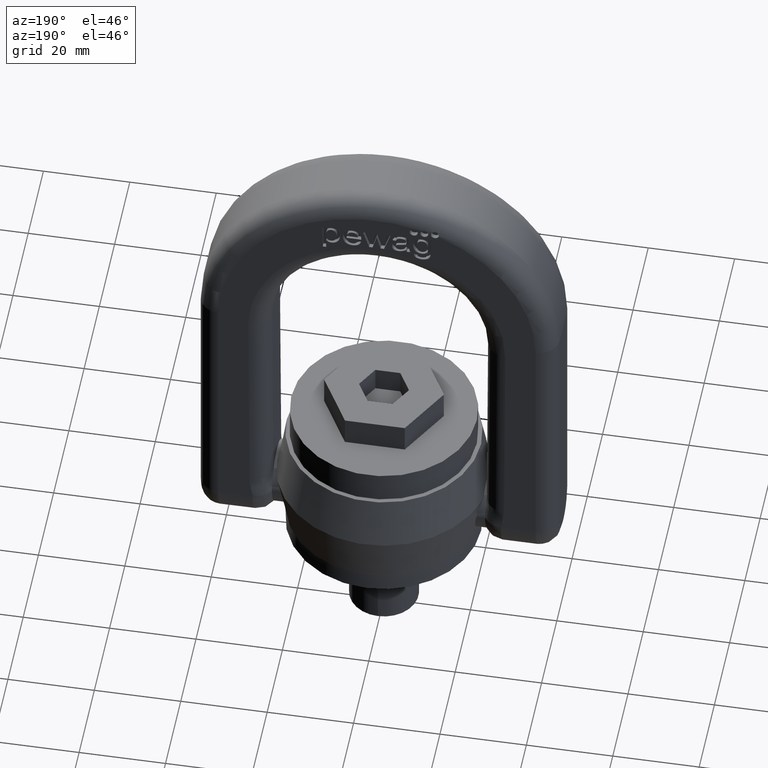
[diagram: clean part render]
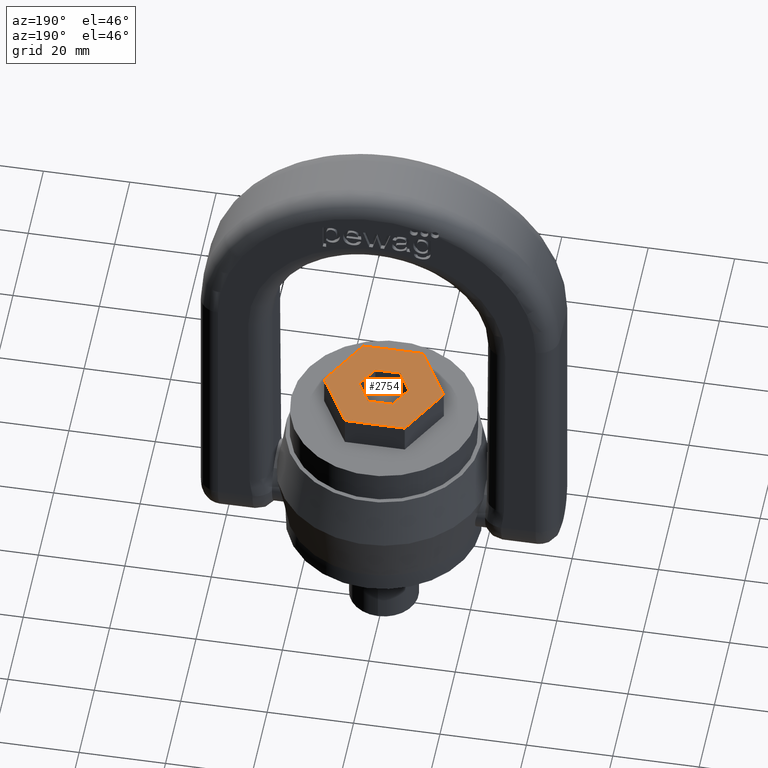
[diagram: same view with one face highlighted and labeled with its STEP entity id]
A machine part, auxiliary view. The second image highlights one B-rep face of the part: STEP entity #2754.
In plain terms, the highlighted planar face has unit normal (0, 0, 1).
Its self-contained STEP definition (entity closure, byte-faithful):
#1762=LINE('',#6634,#2044);
#1765=LINE('',#6640,#2047);
#1767=LINE('',#6644,#2049);
#1769=LINE('',#6648,#2051);
#1771=LINE('',#6652,#2053);
#1772=LINE('',#6654,#2054);
#1773=LINE('',#6656,#2055);
#1774=LINE('',#6659,#2056);
#1775=LINE('',#6661,#2057);
#1776=LINE('',#6663,#2058);
#1777=LINE('',#6665,#2059);
#1778=LINE('',#6667,#2060);
#2044=VECTOR('',#5851,1.);
#2047=VECTOR('',#5856,1.);
#2049=VECTOR('',#5860,1.);
#2051=VECTOR('',#5864,1.);
#2053=VECTOR('',#5868,1.);
#2054=VECTOR('',#5871,1.);
#2055=VECTOR('',#5874,1.);
#2056=VECTOR('',#5875,1.);
#2057=VECTOR('',#5876,1.);
#2058=VECTOR('',#5877,1.);
#2059=VECTOR('',#5878,1.);
#2060=VECTOR('',#5879,1.);
#2635=PLANE('',#5625);
#2754=ADVANCED_FACE('',(#3017,#3018),#2635,.T.);
#3017=FACE_BOUND('',#3086,.T.);
#3018=FACE_BOUND('',#3087,.T.);
#3086=EDGE_LOOP('',(#3385,#3386,#3387,#3388,#3389,#3390));
#3087=EDGE_LOOP('',(#3391,#3392,#3393,#3394,#3395,#3396));
#3385=ORIENTED_EDGE('',*,*,#4969,.F.);
#3386=ORIENTED_EDGE('',*,*,#4970,.F.);
#3387=ORIENTED_EDGE('',*,*,#4971,.F.);
#3388=ORIENTED_EDGE('',*,*,#4972,.F.);
#3389=ORIENTED_EDGE('',*,*,#4973,.F.);
#3390=ORIENTED_EDGE('',*,*,#4974,.F.);
#3391=ORIENTED_EDGE('',*,*,#4958,.T.);
#3392=ORIENTED_EDGE('',*,*,#4961,.T.);
#3393=ORIENTED_EDGE('',*,*,#4963,.T.);
#3394=ORIENTED_EDGE('',*,*,#4965,.T.);
#3395=ORIENTED_EDGE('',*,*,#4967,.T.);
#3396=ORIENTED_EDGE('',*,*,#4968,.T.);
#4557=VERTEX_POINT('',#6633);
#4558=VERTEX_POINT('',#6635);
#4559=VERTEX_POINT('',#6639);
#4560=VERTEX_POINT('',#6643);
#4561=VERTEX_POINT('',#6647);
#4562=VERTEX_POINT('',#6651);
#4563=VERTEX_POINT('',#6657);
#4564=VERTEX_POINT('',#6658);
#4565=VERTEX_POINT('',#6660);
#4566=VERTEX_POINT('',#6662);
#4567=VERTEX_POINT('',#6664);
#4568=VERTEX_POINT('',#6666);
#4958=EDGE_CURVE('',#4558,#4557,#1762,.T.);
#4961=EDGE_CURVE('',#4557,#4559,#1765,.T.);
#4963=EDGE_CURVE('',#4559,#4560,#1767,.T.);
#4965=EDGE_CURVE('',#4560,#4561,#1769,.T.);
#4967=EDGE_CURVE('',#4561,#4562,#1771,.T.);
#4968=EDGE_CURVE('',#4562,#4558,#1772,.T.);
#4969=EDGE_CURVE('',#4563,#4564,#1773,.T.);
#4970=EDGE_CURVE('',#4565,#4563,#1774,.T.);
#4971=EDGE_CURVE('',#4566,#4565,#1775,.T.);
#4972=EDGE_CURVE('',#4567,#4566,#1776,.T.);
#4973=EDGE_CURVE('',#4568,#4567,#1777,.T.);
#4974=EDGE_CURVE('',#4564,#4568,#1778,.T.);
#5625=AXIS2_PLACEMENT_3D('',#6668,#5880,#5881);
#5851=DIRECTION('',(0.5,-0.866025403784439,0.));
#5856=DIRECTION('',(1.,0.,0.));
#5860=DIRECTION('',(0.5,0.866025403784439,0.));
#5864=DIRECTION('',(-0.5,0.866025403784439,0.));
#5868=DIRECTION('',(-1.,0.,0.));
#5871=DIRECTION('',(-0.5,-0.866025403784439,0.));
#5874=DIRECTION('',(0.499999999999999,-0.866025403784439,0.));
#5875=DIRECTION('',(-0.499999999999999,-0.866025403784439,0.));
#5876=DIRECTION('',(-1.,0.,0.));
#5877=DIRECTION('',(-0.499999999999999,0.866025403784439,0.));
#5878=DIRECTION('',(0.499999999999999,0.866025403784439,0.));
#5879=DIRECTION('',(1.,0.,0.));
#5880=DIRECTION('',(0.,0.,1.));
#5881=DIRECTION('',(1.,0.,0.));
#6633=CARTESIAN_POINT('',(-6.92820323027551,-12.,43.));
#6634=CARTESIAN_POINT('',(-13.856406460551,0.,43.));
#6635=CARTESIAN_POINT('',(-13.856406460551,0.,43.));
#6639=CARTESIAN_POINT('',(6.92820323027551,-12.,43.));
#6640=CARTESIAN_POINT('',(-6.92820323027551,-12.,43.));
#6643=CARTESIAN_POINT('',(13.856406460551,1.73472347597681E-15,43.));
#6644=CARTESIAN_POINT('',(6.92820323027551,-12.,43.));
#6647=CARTESIAN_POINT('',(6.92820323027551,12.,43.));
#6648=CARTESIAN_POINT('',(13.856406460551,0.,43.));
#6651=CARTESIAN_POINT('',(-6.92820323027551,12.,43.));
#6652=CARTESIAN_POINT('',(6.92820323027551,12.,43.));
#6654=CARTESIAN_POINT('',(-6.92820323027551,12.,43.));
#6656=CARTESIAN_POINT('',(-5.77350269189625,0.,43.));
#6657=CARTESIAN_POINT('',(-5.77350269189625,0.,43.));
#6658=CARTESIAN_POINT('',(-2.88675134594813,-5.,43.));
#6659=CARTESIAN_POINT('',(-2.88675134594813,5.,43.));
#6660=CARTESIAN_POINT('',(-2.88675134594813,5.,43.));
#6661=CARTESIAN_POINT('',(2.88675134594813,5.,43.));
#6662=CARTESIAN_POINT('',(2.88675134594813,5.,43.));
#6663=CARTESIAN_POINT('',(5.77350269189625,0.,43.));
#6664=CARTESIAN_POINT('',(5.77350269189625,-1.73472347597681E-15,43.));
#6665=CARTESIAN_POINT('',(2.88675134594813,-5.,43.));
#6666=CARTESIAN_POINT('',(2.88675134594813,-5.,43.));
#6667=CARTESIAN_POINT('',(-2.88675134594813,-5.,43.));
#6668=CARTESIAN_POINT('',(0.,0.,43.));